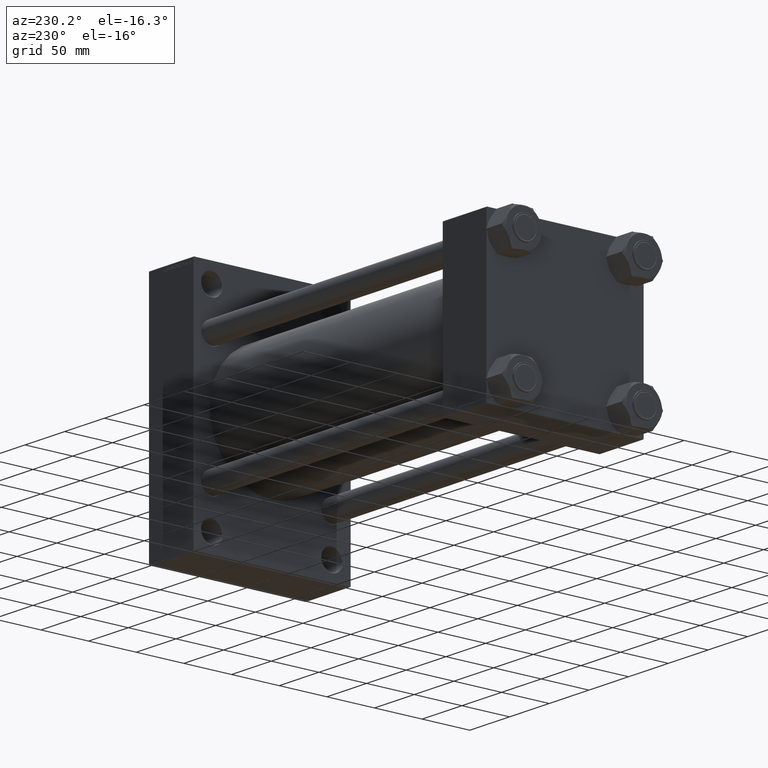
[diagram: clean part render]
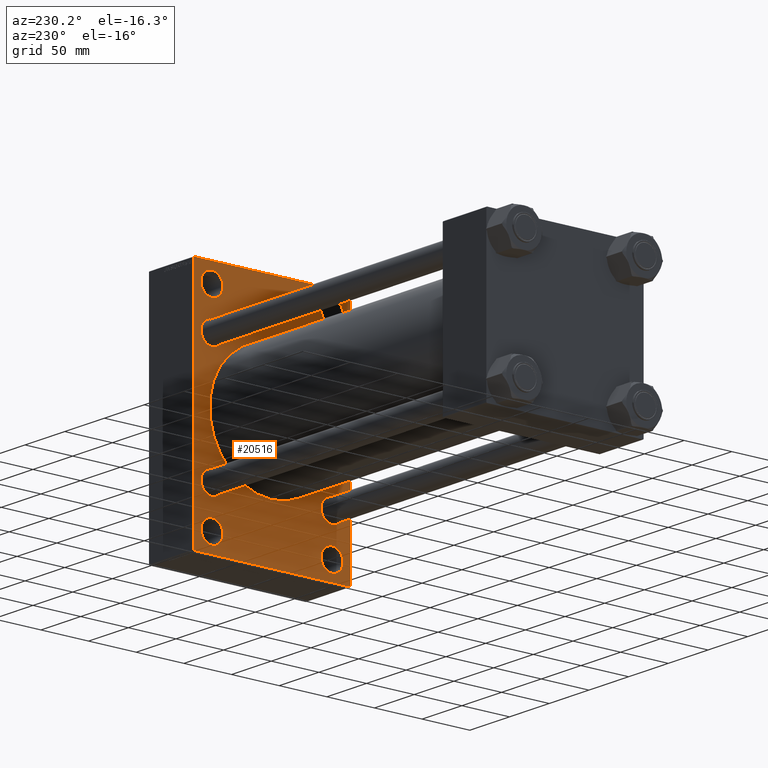
[diagram: same view with one face highlighted and labeled with its STEP entity id]
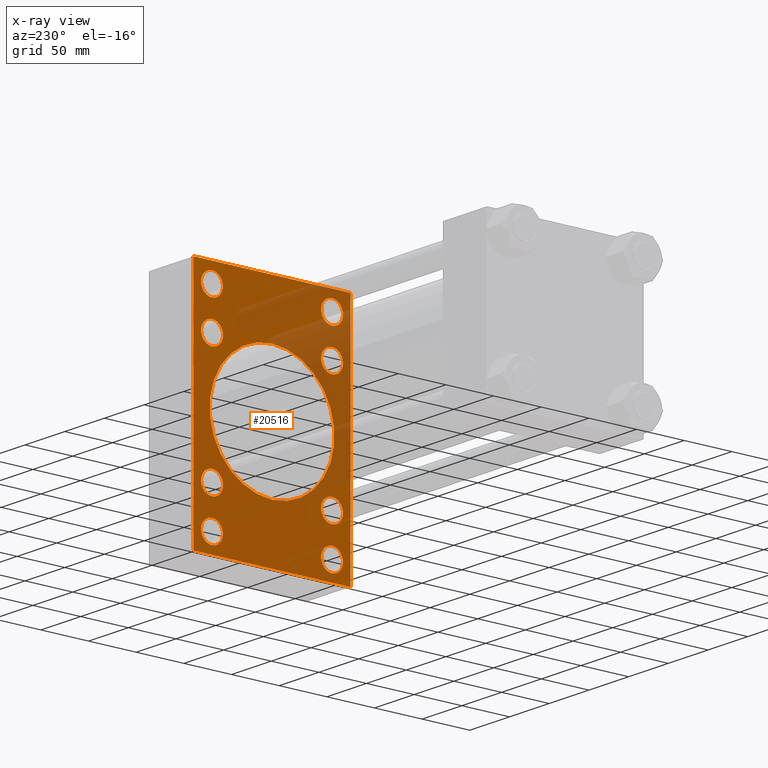
[diagram: x-ray of the same camera — body ghosted, the highlighted face saturated]
A machine part, auxiliary view. The second image highlights one B-rep face of the part: STEP entity #20516.
The next image is the same camera in x-ray: the body ghosted, the highlighted face saturated — about 29% of this face is hidden behind the body in this view.
In plain terms, the highlighted planar face has unit normal (-1, 0, 0).
Its self-contained STEP definition (entity closure, byte-faithful):
#410 = AXIS2_PLACEMENT_3D ( 'NONE', #19456, #20167, #12195 ) ;
#1279 = AXIS2_PLACEMENT_3D ( 'NONE', #31480, #40363, #3090 ) ;
#1308 = EDGE_CURVE ( 'NONE', #27948, #35167, #41766, .T. ) ;
#1566 = VECTOR ( 'NONE', #12708, 1000.000000000000000 ) ;
#1586 = VECTOR ( 'NONE', #23835, 1000.000000000000000 ) ;
#1650 = EDGE_CURVE ( 'NONE', #43187, #46026, #8618, .T. ) ;
#1746 = ORIENTED_EDGE ( 'NONE', *, *, #26680, .T. ) ;
#1797 = ORIENTED_EDGE ( 'NONE', *, *, #18946, .T. ) ;
#2014 = CARTESIAN_POINT ( 'NONE',  ( 369.0000000000000000, 82.50000000000000000, -122.9999999999999858 ) ) ;
#2148 = ORIENTED_EDGE ( 'NONE', *, *, #31668, .T. ) ;
#2168 = CARTESIAN_POINT ( 'NONE',  ( 369.0000000000000000, 63.00000000000000000, -92.50000000000005684 ) ) ;
#2232 = AXIS2_PLACEMENT_3D ( 'NONE', #10538, #40068, #32796 ) ;
#2469 = CARTESIAN_POINT ( 'NONE',  ( 369.0000000000000000, -62.94999999999998153, 62.95000000000001705 ) ) ;
#2488 = VERTEX_POINT ( 'NONE', #12253 ) ;
#2749 = AXIS2_PLACEMENT_3D ( 'NONE', #46273, #46041, #35833 ) ;
#2775 = CIRCLE ( 'NONE', #5112, 11.49999999999995381 ) ;
#2854 = VERTEX_POINT ( 'NONE', #38833 ) ;
#3090 = DIRECTION ( 'NONE',  ( 0.000000000000000000, 0.000000000000000000, 1.000000000000000000 ) ) ;
#3193 = ORIENTED_EDGE ( 'NONE', *, *, #17672, .T. ) ;
#3194 = CARTESIAN_POINT ( 'NONE',  ( 369.0000000000000000, -62.94999999999998153, 62.95000000000001705 ) ) ;
#3346 = EDGE_CURVE ( 'NONE', #30103, #12112, #11660, .T. ) ;
#3457 = VERTEX_POINT ( 'NONE', #27006 ) ;
#3503 = CIRCLE ( 'NONE', #22031, 11.50000000000001066 ) ;
#4182 = VERTEX_POINT ( 'NONE', #33405 ) ;
#4284 = AXIS2_PLACEMENT_3D ( 'NONE', #9778, #16787, #5458 ) ;
#4842 = CIRCLE ( 'NONE', #19496, 65.50000000000001421 ) ;
#4950 = ORIENTED_EDGE ( 'NONE', *, *, #46498, .T. ) ;
#5102 = FACE_OUTER_BOUND ( 'NONE', #24380, .T. ) ;
#5112 = AXIS2_PLACEMENT_3D ( 'NONE', #19965, #34741, #16570 ) ;
#5130 = EDGE_LOOP ( 'NONE', ( #30296, #41962 ) ) ;
#5458 = DIRECTION ( 'NONE',  ( 0.000000000000000000, 0.000000000000000000, 1.000000000000000000 ) ) ;
#5494 = DIRECTION ( 'NONE',  ( 1.000000000000000000, 0.000000000000000000, 0.000000000000000000 ) ) ;
#5631 = DIRECTION ( 'NONE',  ( 0.000000000000000000, 0.000000000000000000, -1.000000000000000000 ) ) ;
#5797 = CARTESIAN_POINT ( 'NONE',  ( 369.0000000000000000, -62.94999999999998153, 51.45000000000000995 ) ) ;
#5802 = DIRECTION ( 'NONE',  ( 0.000000000000000000, 0.000000000000000000, 1.000000000000000000 ) ) ;
#5913 = CIRCLE ( 'NONE', #1279, 11.49999999999995381 ) ;
#5919 = ORIENTED_EDGE ( 'NONE', *, *, #6800, .T. ) ;
#6150 = ORIENTED_EDGE ( 'NONE', *, *, #28874, .T. ) ;
#6176 = CARTESIAN_POINT ( 'NONE',  ( 369.0000000000000000, 62.95000000000000284, 62.95000000000000284 ) ) ;
#6368 = EDGE_CURVE ( 'NONE', #46026, #15655, #6545, .T. ) ;
#6377 = ORIENTED_EDGE ( 'NONE', *, *, #28212, .T. ) ;
#6545 = LINE ( 'NONE', #18611, #19463 ) ;
#6597 = EDGE_LOOP ( 'NONE', ( #1746, #8772 ) ) ;
#6799 = DIRECTION ( 'NONE',  ( 1.000000000000000000, -0.000000000000000000, 0.000000000000000000 ) ) ;
#6800 = EDGE_CURVE ( 'NONE', #29152, #42572, #38848, .T. ) ;
#7303 = EDGE_CURVE ( 'NONE', #2854, #13853, #4842, .T. ) ;
#7347 = DIRECTION ( 'NONE',  ( 1.000000000000000000, -0.000000000000000000, 0.000000000000000000 ) ) ;
#7396 = CARTESIAN_POINT ( 'NONE',  ( 369.0000000000000000, -82.00000000000002842, -123.5000000000000142 ) ) ;
#8618 = LINE ( 'NONE', #39091, #1566 ) ;
#8772 = ORIENTED_EDGE ( 'NONE', *, *, #1308, .T. ) ;
#8979 = VECTOR ( 'NONE', #39406, 999.9999999999998863 ) ;
#9330 = LINE ( 'NONE', #46110, #1586 ) ;
#9353 = AXIS2_PLACEMENT_3D ( 'NONE', #39953, #6799, #17424 ) ;
#9761 = CIRCLE ( 'NONE', #12837, 65.50000000000001421 ) ;
#9778 = CARTESIAN_POINT ( 'NONE',  ( 369.0000000000000000, 62.95000000000000284, -62.95000000000000284 ) ) ;
#9917 = CARTESIAN_POINT ( 'NONE',  ( 369.0000000000000000, 81.99999999999992895, 123.5000000000000142 ) ) ;
#10538 = CARTESIAN_POINT ( 'NONE',  ( 369.0000000000000000, -63.00000000000000000, 103.9999999999999858 ) ) ;
#11304 = DIRECTION ( 'NONE',  ( 1.000000000000000000, -0.000000000000000000, 0.000000000000000000 ) ) ;
#11470 = ORIENTED_EDGE ( 'NONE', *, *, #29449, .T. ) ;
#11593 = VERTEX_POINT ( 'NONE', #12846 ) ;
#11621 = FACE_BOUND ( 'NONE', #37457, .T. ) ;
#11660 = CIRCLE ( 'NONE', #43333, 11.49999999999995381 ) ;
#11858 = DIRECTION ( 'NONE',  ( -0.000000000000000000, 0.000000000000000000, 1.000000000000000000 ) ) ;
#12112 = VERTEX_POINT ( 'NONE', #27493 ) ;
#12195 = DIRECTION ( 'NONE',  ( 0.000000000000000000, 0.000000000000000000, 1.000000000000000000 ) ) ;
#12253 = CARTESIAN_POINT ( 'NONE',  ( 369.0000000000000000, 62.95000000000000284, 51.45000000000000995 ) ) ;
#12347 = DIRECTION ( 'NONE',  ( 0.000000000000000000, 0.000000000000000000, 1.000000000000000000 ) ) ;
#12708 = DIRECTION ( 'NONE',  ( 0.000000000000000000, -1.000000000000000000, -8.410780489584517938E-17 ) ) ;
#12768 = CIRCLE ( 'NONE', #2749, 11.49999999999999645 ) ;
#12786 = LINE ( 'NONE', #16645, #36205 ) ;
#12837 = AXIS2_PLACEMENT_3D ( 'NONE', #24096, #5494, #41543 ) ;
#12846 = CARTESIAN_POINT ( 'NONE',  ( 369.0000000000000000, 63.00000000000000000, 92.50000000000004263 ) ) ;
#13853 = VERTEX_POINT ( 'NONE', #14902 ) ;
#13994 = AXIS2_PLACEMENT_3D ( 'NONE', #2469, #14064, #43585 ) ;
#14064 = DIRECTION ( 'NONE',  ( 1.000000000000000000, -0.000000000000000000, 0.000000000000000000 ) ) ;
#14218 = DIRECTION ( 'NONE',  ( 0.000000000000000000, 0.000000000000000000, 1.000000000000000000 ) ) ;
#14375 = CARTESIAN_POINT ( 'NONE',  ( 369.0000000000000000, -63.00000000000000000, 115.4999999999999432 ) ) ;
#14395 = LINE ( 'NONE', #46834, #15142 ) ;
#14444 = CARTESIAN_POINT ( 'NONE',  ( 369.0000000000000000, -62.94999999999998153, -74.45000000000001705 ) ) ;
#14463 = ORIENTED_EDGE ( 'NONE', *, *, #25106, .T. ) ;
#14856 = CARTESIAN_POINT ( 'NONE',  ( 369.0000000000000000, 63.00000000000000000, 104.0000000000000000 ) ) ;
#14902 = CARTESIAN_POINT ( 'NONE',  ( 369.0000000000000000, -2.602085213965210642E-15, 65.50000000000001421 ) ) ;
#15142 = VECTOR ( 'NONE', #17768, 1000.000000000000000 ) ;
#15297 = VERTEX_POINT ( 'NONE', #2014 ) ;
#15410 = DIRECTION ( 'NONE',  ( 0.000000000000000000, 0.000000000000000000, 1.000000000000000000 ) ) ;
#15413 = CIRCLE ( 'NONE', #34776, 11.49999999999999645 ) ;
#15598 = VERTEX_POINT ( 'NONE', #9917 ) ;
#15655 = VERTEX_POINT ( 'NONE', #42848 ) ;
#15872 = VERTEX_POINT ( 'NONE', #38216 ) ;
#16304 = CIRCLE ( 'NONE', #13994, 11.50000000000001066 ) ;
#16435 = VERTEX_POINT ( 'NONE', #45575 ) ;
#16570 = DIRECTION ( 'NONE',  ( 0.000000000000000000, 0.000000000000000000, 1.000000000000000000 ) ) ;
#16645 = CARTESIAN_POINT ( 'NONE',  ( 369.0000000000000000, 102.7499999999999716, 102.7499999999999716 ) ) ;
#16787 = DIRECTION ( 'NONE',  ( 1.000000000000000000, -0.000000000000000000, 0.000000000000000000 ) ) ;
#16931 = VERTEX_POINT ( 'NONE', #32349 ) ;
#17344 = ORIENTED_EDGE ( 'NONE', *, *, #29163, .T. ) ;
#17424 = DIRECTION ( 'NONE',  ( 0.000000000000000000, 0.000000000000000000, 1.000000000000000000 ) ) ;
#17672 = EDGE_CURVE ( 'NONE', #16931, #47668, #3503, .T. ) ;
#17768 = DIRECTION ( 'NONE',  ( 0.000000000000000000, 5.618537574013950123E-17, -1.000000000000000000 ) ) ;
#17920 = AXIS2_PLACEMENT_3D ( 'NONE', #47377, #18798, #14218 ) ;
#18391 = FACE_BOUND ( 'NONE', #31994, .T. ) ;
#18611 = CARTESIAN_POINT ( 'NONE',  ( 369.0000000000000000, -102.7499999999988916, -102.7500000000017479 ) ) ;
#18671 = ORIENTED_EDGE ( 'NONE', *, *, #26180, .T. ) ;
#18798 = DIRECTION ( 'NONE',  ( 1.000000000000000000, -0.000000000000000000, 0.000000000000000000 ) ) ;
#18946 = EDGE_CURVE ( 'NONE', #15297, #43187, #35059, .T. ) ;
#19134 = VECTOR ( 'NONE', #5631, 1000.000000000000000 ) ;
#19198 = ORIENTED_EDGE ( 'NONE', *, *, #41516, .T. ) ;
#19456 = CARTESIAN_POINT ( 'NONE',  ( 369.0000000000000000, -63.00000000000000000, 103.9999999999999858 ) ) ;
#19463 = VECTOR ( 'NONE', #29509, 1000.000000000000000 ) ;
#19496 = AXIS2_PLACEMENT_3D ( 'NONE', #20584, #21522, #35357 ) ;
#19912 = ORIENTED_EDGE ( 'NONE', *, *, #44667, .T. ) ;
#19965 = CARTESIAN_POINT ( 'NONE',  ( 369.0000000000000000, -63.00000000000000000, -104.0000000000000142 ) ) ;
#20074 = PLANE ( 'NONE',  #41469 ) ;
#20167 = DIRECTION ( 'NONE',  ( 1.000000000000000000, -0.000000000000000000, 0.000000000000000000 ) ) ;
#20245 = CARTESIAN_POINT ( 'NONE',  ( 369.0000000000000000, 82.00000000000000000, -123.5000000000000000 ) ) ;
#20516 = ADVANCED_FACE ( 'NONE', ( #25891, #18391, #33172, #44782, #29778, #44544, #11621, #26368, #38019, #5102 ), #20074, .T. ) ;
#20584 = CARTESIAN_POINT ( 'NONE',  ( 369.0000000000000000, -2.602085213965210642E-15, 0.000000000000000000 ) ) ;
#20749 = CARTESIAN_POINT ( 'NONE',  ( 369.0000000000000000, 102.7500000000011511, -102.7499999999982947 ) ) ;
#20758 = DIRECTION ( 'NONE',  ( 1.000000000000000000, -0.000000000000000000, 0.000000000000000000 ) ) ;
#20911 = CIRCLE ( 'NONE', #9353, 11.49999999999995381 ) ;
#21522 = DIRECTION ( 'NONE',  ( 1.000000000000000000, 0.000000000000000000, 0.000000000000000000 ) ) ;
#22031 = AXIS2_PLACEMENT_3D ( 'NONE', #3194, #32712, #28590 ) ;
#22313 = EDGE_LOOP ( 'NONE', ( #6377, #27838 ) ) ;
#22827 = DIRECTION ( 'NONE',  ( 0.000000000000000000, 0.000000000000000000, 1.000000000000000000 ) ) ;
#23071 = ORIENTED_EDGE ( 'NONE', *, *, #1650, .T. ) ;
#23379 = EDGE_CURVE ( 'NONE', #4182, #15655, #38788, .T. ) ;
#23577 = CIRCLE ( 'NONE', #410, 11.49999999999995381 ) ;
#23605 = ORIENTED_EDGE ( 'NONE', *, *, #35797, .T. ) ;
#23835 = DIRECTION ( 'NONE',  ( 0.000000000000000000, -1.000000000000000000, -2.523234146875355505E-16 ) ) ;
#24096 = CARTESIAN_POINT ( 'NONE',  ( 369.0000000000000000, -2.602085213965210642E-15, 0.000000000000000000 ) ) ;
#24343 = LINE ( 'NONE', #38911, #42364 ) ;
#24380 = EDGE_LOOP ( 'NONE', ( #23071, #32785, #37447, #23605, #39588, #29095, #17344, #1797 ) ) ;
#25064 = VERTEX_POINT ( 'NONE', #42979 ) ;
#25106 = EDGE_CURVE ( 'NONE', #15872, #32721, #36203, .T. ) ;
#25243 = DIRECTION ( 'NONE',  ( 0.000000000000000000, 0.000000000000000000, 1.000000000000000000 ) ) ;
#25474 = CIRCLE ( 'NONE', #39429, 11.49999999999995381 ) ;
#25492 = DIRECTION ( 'NONE',  ( 1.000000000000000000, -0.000000000000000000, 0.000000000000000000 ) ) ;
#25891 = FACE_BOUND ( 'NONE', #27178, .T. ) ;
#26180 = EDGE_CURVE ( 'NONE', #42572, #29152, #37518, .T. ) ;
#26368 = FACE_BOUND ( 'NONE', #6597, .T. ) ;
#26610 = DIRECTION ( 'NONE',  ( 1.000000000000000000, -0.000000000000000000, 0.000000000000000000 ) ) ;
#26680 = EDGE_CURVE ( 'NONE', #35167, #27948, #12768, .T. ) ;
#27006 = CARTESIAN_POINT ( 'NONE',  ( 369.0000000000000000, 63.00000000000000000, 115.4999999999999432 ) ) ;
#27178 = EDGE_LOOP ( 'NONE', ( #11470, #14463 ) ) ;
#27493 = CARTESIAN_POINT ( 'NONE',  ( 369.0000000000000000, 63.00000000000000000, -115.4999999999999574 ) ) ;
#27838 = ORIENTED_EDGE ( 'NONE', *, *, #7303, .T. ) ;
#27941 = ORIENTED_EDGE ( 'NONE', *, *, #47221, .T. ) ;
#27948 = VERTEX_POINT ( 'NONE', #14444 ) ;
#28212 = EDGE_CURVE ( 'NONE', #13853, #2854, #9761, .T. ) ;
#28590 = DIRECTION ( 'NONE',  ( 0.000000000000000000, 0.000000000000000000, 1.000000000000000000 ) ) ;
#28874 = EDGE_CURVE ( 'NONE', #12112, #30103, #5913, .T. ) ;
#29095 = ORIENTED_EDGE ( 'NONE', *, *, #38345, .T. ) ;
#29152 = VERTEX_POINT ( 'NONE', #32553 ) ;
#29163 = EDGE_CURVE ( 'NONE', #25064, #15297, #14395, .T. ) ;
#29359 = AXIS2_PLACEMENT_3D ( 'NONE', #14856, #25492, #22827 ) ;
#29449 = EDGE_CURVE ( 'NONE', #32721, #15872, #23577, .T. ) ;
#29509 = DIRECTION ( 'NONE',  ( 0.000000000000000000, -0.7071067811865573427, 0.7071067811865378028 ) ) ;
#29778 = FACE_BOUND ( 'NONE', #35987, .T. ) ;
#30103 = VERTEX_POINT ( 'NONE', #2168 ) ;
#30168 = CARTESIAN_POINT ( 'NONE',  ( 369.0000000000000000, 62.95000000000000284, 74.45000000000000284 ) ) ;
#30224 = VERTEX_POINT ( 'NONE', #45617 ) ;
#30296 = ORIENTED_EDGE ( 'NONE', *, *, #40426, .T. ) ;
#31416 = DIRECTION ( 'NONE',  ( 0.000000000000000000, 0.7071067811865474617, -0.7071067811865474617 ) ) ;
#31480 = CARTESIAN_POINT ( 'NONE',  ( 369.0000000000000000, 63.00000000000000000, -104.0000000000000142 ) ) ;
#31668 = EDGE_CURVE ( 'NONE', #30224, #16435, #2775, .T. ) ;
#31769 = EDGE_LOOP ( 'NONE', ( #19198, #19912 ) ) ;
#31994 = EDGE_LOOP ( 'NONE', ( #4950, #2148 ) ) ;
#32349 = CARTESIAN_POINT ( 'NONE',  ( 369.0000000000000000, -62.94999999999998153, 74.45000000000003126 ) ) ;
#32553 = CARTESIAN_POINT ( 'NONE',  ( 369.0000000000000000, 62.95000000000000284, -74.45000000000000284 ) ) ;
#32712 = DIRECTION ( 'NONE',  ( 1.000000000000000000, -0.000000000000000000, 0.000000000000000000 ) ) ;
#32721 = VERTEX_POINT ( 'NONE', #14375 ) ;
#32785 = ORIENTED_EDGE ( 'NONE', *, *, #6368, .T. ) ;
#32796 = DIRECTION ( 'NONE',  ( 0.000000000000000000, 0.000000000000000000, 1.000000000000000000 ) ) ;
#33172 = FACE_BOUND ( 'NONE', #45908, .T. ) ;
#33385 = VERTEX_POINT ( 'NONE', #30168 ) ;
#33405 = CARTESIAN_POINT ( 'NONE',  ( 369.0000000000000000, -82.50000000000002842, 123.0000000000000284 ) ) ;
#33470 = EDGE_CURVE ( 'NONE', #2488, #33385, #33773, .T. ) ;
#33765 = CARTESIAN_POINT ( 'NONE',  ( 369.0000000000000000, 62.95000000000000284, -51.45000000000000995 ) ) ;
#33773 = CIRCLE ( 'NONE', #43813, 11.49999999999999645 ) ;
#34414 = CARTESIAN_POINT ( 'NONE',  ( 369.0000000000000000, -62.94999999999998153, -51.45000000000002416 ) ) ;
#34626 = CARTESIAN_POINT ( 'NONE',  ( 369.0000000000000000, -82.00000000000015632, 123.4999999999999716 ) ) ;
#34741 = DIRECTION ( 'NONE',  ( 1.000000000000000000, -0.000000000000000000, 0.000000000000000000 ) ) ;
#34776 = AXIS2_PLACEMENT_3D ( 'NONE', #6176, #40032, #25243 ) ;
#34833 = CARTESIAN_POINT ( 'NONE',  ( 369.0000000000000000, 63.00000000000000000, 104.0000000000000000 ) ) ;
#34853 = DIRECTION ( 'NONE',  ( -1.000000000000000000, 0.000000000000000000, -0.000000000000000000 ) ) ;
#35059 = LINE ( 'NONE', #20749, #8979 ) ;
#35085 = CARTESIAN_POINT ( 'NONE',  ( 369.0000000000000000, 0.000000000000000000, 0.000000000000000000 ) ) ;
#35167 = VERTEX_POINT ( 'NONE', #34414 ) ;
#35357 = DIRECTION ( 'NONE',  ( 0.000000000000000000, 0.000000000000000000, -1.000000000000000000 ) ) ;
#35797 = EDGE_CURVE ( 'NONE', #4182, #37091, #24343, .T. ) ;
#35833 = DIRECTION ( 'NONE',  ( 0.000000000000000000, 0.000000000000000000, 1.000000000000000000 ) ) ;
#35987 = EDGE_LOOP ( 'NONE', ( #3193, #27941 ) ) ;
#36203 = CIRCLE ( 'NONE', #2232, 11.49999999999995381 ) ;
#36205 = VECTOR ( 'NONE', #31416, 1000.000000000000114 ) ;
#36621 = DIRECTION ( 'NONE',  ( 0.000000000000000000, 0.000000000000000000, 1.000000000000000000 ) ) ;
#37091 = VERTEX_POINT ( 'NONE', #34626 ) ;
#37213 = ORIENTED_EDGE ( 'NONE', *, *, #3346, .T. ) ;
#37447 = ORIENTED_EDGE ( 'NONE', *, *, #23379, .F. ) ;
#37457 = EDGE_LOOP ( 'NONE', ( #18671, #5919 ) ) ;
#37518 = CIRCLE ( 'NONE', #4284, 11.49999999999999645 ) ;
#37780 = CARTESIAN_POINT ( 'NONE',  ( 369.0000000000000000, -62.94999999999998153, -62.95000000000001705 ) ) ;
#37895 = CIRCLE ( 'NONE', #29359, 11.49999999999995381 ) ;
#38019 = FACE_BOUND ( 'NONE', #22313, .T. ) ;
#38216 = CARTESIAN_POINT ( 'NONE',  ( 369.0000000000000000, -63.00000000000000000, 92.50000000000002842 ) ) ;
#38345 = EDGE_CURVE ( 'NONE', #15598, #25064, #12786, .T. ) ;
#38677 = DIRECTION ( 'NONE',  ( -0.000000000000000000, 0.7071067811864985009, 0.7071067811865965336 ) ) ;
#38682 = AXIS2_PLACEMENT_3D ( 'NONE', #37780, #26610, #12347 ) ;
#38788 = LINE ( 'NONE', #45309, #19134 ) ;
#38833 = CARTESIAN_POINT ( 'NONE',  ( 369.0000000000000000, 5.419351320449954973E-15, -65.50000000000001421 ) ) ;
#38848 = CIRCLE ( 'NONE', #17920, 11.49999999999999645 ) ;
#38911 = CARTESIAN_POINT ( 'NONE',  ( 369.0000000000000000, -102.7500000000057412, 102.7499999999914877 ) ) ;
#39091 = CARTESIAN_POINT ( 'NONE',  ( 369.0000000000000000, 82.50000000000000000, -123.5000000000000000 ) ) ;
#39406 = DIRECTION ( 'NONE',  ( -0.000000000000000000, -0.7071067811865376918, -0.7071067811865574537 ) ) ;
#39429 = AXIS2_PLACEMENT_3D ( 'NONE', #34833, #20758, #5802 ) ;
#39588 = ORIENTED_EDGE ( 'NONE', *, *, #44388, .F. ) ;
#39953 = CARTESIAN_POINT ( 'NONE',  ( 369.0000000000000000, -63.00000000000000000, -104.0000000000000142 ) ) ;
#40032 = DIRECTION ( 'NONE',  ( 1.000000000000000000, -0.000000000000000000, 0.000000000000000000 ) ) ;
#40068 = DIRECTION ( 'NONE',  ( 1.000000000000000000, -0.000000000000000000, 0.000000000000000000 ) ) ;
#40363 = DIRECTION ( 'NONE',  ( 1.000000000000000000, -0.000000000000000000, 0.000000000000000000 ) ) ;
#40426 = EDGE_CURVE ( 'NONE', #33385, #2488, #15413, .T. ) ;
#40509 = CARTESIAN_POINT ( 'NONE',  ( 369.0000000000000000, 62.95000000000000284, 62.95000000000000284 ) ) ;
#40844 = CARTESIAN_POINT ( 'NONE',  ( 369.0000000000000000, 63.00000000000000000, -104.0000000000000142 ) ) ;
#41469 = AXIS2_PLACEMENT_3D ( 'NONE', #35085, #34853, #11858 ) ;
#41516 = EDGE_CURVE ( 'NONE', #3457, #11593, #37895, .T. ) ;
#41543 = DIRECTION ( 'NONE',  ( 0.000000000000000000, 0.000000000000000000, -1.000000000000000000 ) ) ;
#41766 = CIRCLE ( 'NONE', #38682, 11.49999999999999645 ) ;
#41962 = ORIENTED_EDGE ( 'NONE', *, *, #33470, .T. ) ;
#42364 = VECTOR ( 'NONE', #38677, 1000.000000000000114 ) ;
#42572 = VERTEX_POINT ( 'NONE', #33765 ) ;
#42848 = CARTESIAN_POINT ( 'NONE',  ( 369.0000000000000000, -82.50000000000002842, -123.0000000000000284 ) ) ;
#42979 = CARTESIAN_POINT ( 'NONE',  ( 369.0000000000000000, 82.49999999999998579, 122.9999999999999574 ) ) ;
#43187 = VERTEX_POINT ( 'NONE', #20245 ) ;
#43333 = AXIS2_PLACEMENT_3D ( 'NONE', #40844, #11304, #15410 ) ;
#43585 = DIRECTION ( 'NONE',  ( 0.000000000000000000, 0.000000000000000000, 1.000000000000000000 ) ) ;
#43813 = AXIS2_PLACEMENT_3D ( 'NONE', #40509, #7347, #36621 ) ;
#44388 = EDGE_CURVE ( 'NONE', #15598, #37091, #9330, .T. ) ;
#44544 = FACE_BOUND ( 'NONE', #5130, .T. ) ;
#44667 = EDGE_CURVE ( 'NONE', #11593, #3457, #25474, .T. ) ;
#44782 = FACE_BOUND ( 'NONE', #31769, .T. ) ;
#45309 = CARTESIAN_POINT ( 'NONE',  ( 369.0000000000000000, -82.50000000000002842, 123.4999999999999716 ) ) ;
#45575 = CARTESIAN_POINT ( 'NONE',  ( 369.0000000000000000, -63.00000000000000000, -92.50000000000005684 ) ) ;
#45617 = CARTESIAN_POINT ( 'NONE',  ( 369.0000000000000000, -63.00000000000000000, -115.4999999999999574 ) ) ;
#45908 = EDGE_LOOP ( 'NONE', ( #37213, #6150 ) ) ;
#46026 = VERTEX_POINT ( 'NONE', #7396 ) ;
#46041 = DIRECTION ( 'NONE',  ( 1.000000000000000000, -0.000000000000000000, 0.000000000000000000 ) ) ;
#46110 = CARTESIAN_POINT ( 'NONE',  ( 369.0000000000000000, 82.49999999999998579, 123.5000000000000142 ) ) ;
#46273 = CARTESIAN_POINT ( 'NONE',  ( 369.0000000000000000, -62.94999999999998153, -62.95000000000001705 ) ) ;
#46498 = EDGE_CURVE ( 'NONE', #16435, #30224, #20911, .T. ) ;
#46834 = CARTESIAN_POINT ( 'NONE',  ( 369.0000000000000000, 82.49999999999998579, 123.5000000000000142 ) ) ;
#47221 = EDGE_CURVE ( 'NONE', #47668, #16931, #16304, .T. ) ;
#47377 = CARTESIAN_POINT ( 'NONE',  ( 369.0000000000000000, 62.95000000000000284, -62.95000000000000284 ) ) ;
#47668 = VERTEX_POINT ( 'NONE', #5797 ) ;